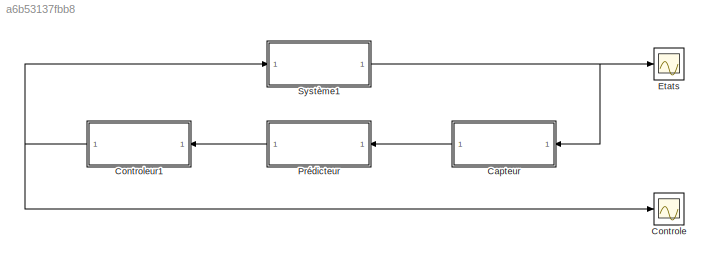
MODEL slx_a6b53137fbb8
KIND model
CONFIG AbsTol = auto
CONFIG EnableMultiTasking = off
CONFIG FixedStep = 5
CONFIG MaxStep = auto
CONFIG MinStep = auto
CONFIG RelTol = 1e-3
CONFIG SampleTimeConstraint = Unconstrained
CONFIG SolverName = ode1
CONFIG StartTime = 0.0
CONFIG StopTime = 100
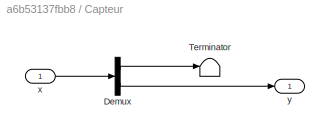
BLOCK [SubSystem] Capteur
BLOCK [Demux] Capteur/Demux
  Outputs = 2
BLOCK [Terminator] Capteur/Terminator
BLOCK [Inport] Capteur/x
BLOCK [Outport] Capteur/y
BLOCK [Scope] Controle
  Floating = off
  NumInputPorts = 1
  ScopeSpecificationString = Simulink.scopes.TimeScopeBlockCfg('CurrentConfiguration', extmgr.ConfigurationSet(extmgr.Configuration('Core','General UI',true),extmgr.Configuration('Core','Source UI',true),extmgr.Configuration('Sources','WiredSimulink',true),extmgr.Configuration('Visuals','Time Domain',true,'SerializedDisplays',{struct('MinYLimReal','-1.33998','MaxYLimReal','1.89422','YLabelReal','','MinYLimMag','0.00000','MaxY...<+1394ch>
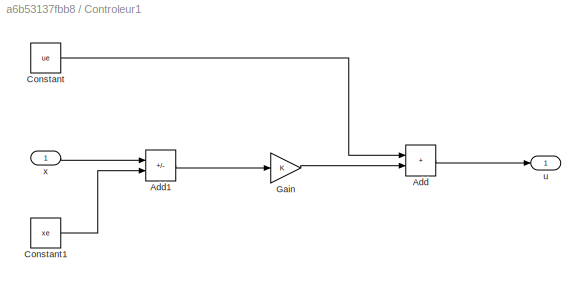
BLOCK [SubSystem] Controleur1
BLOCK [Sum] Controleur1/Add
  IconShape = rectangular
BLOCK [Sum] Controleur1/Add1
  IconShape = rectangular
  Inputs = +-
BLOCK [Constant] Controleur1/Constant
  Value = ue
BLOCK [Constant] Controleur1/Constant1
  Value = xe
BLOCK [Gain] Controleur1/Gain
  Gain = K
  Multiplication = Matrix(K*u)
BLOCK [Outport] Controleur1/u
BLOCK [Inport] Controleur1/x
BLOCK [Scope] Etats
  Floating = off
  NumInputPorts = 1
  ScopeSpecificationString = Simulink.scopes.TimeScopeBlockCfg('CurrentConfiguration', extmgr.ConfigurationSet(extmgr.Configuration('Core','General UI',true),extmgr.Configuration('Core','Source UI',true),extmgr.Configuration('Sources','WiredSimulink',true,'DataLoggingVariableName','ScopeData1'),extmgr.Configuration('Visuals','Time Domain',true,'SerializedDisplays',{struct('MinYLimReal','-0.13455','MaxYLimReal','0.18948','YLab...<+1507ch>
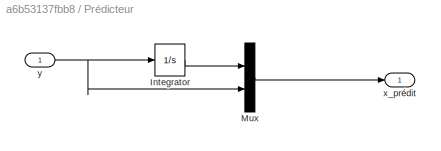
BLOCK [SubSystem] Prédicteur
BLOCK [Integrator] Prédicteur/Integrator
  InitialCondition = x0(1)
BLOCK [Mux] Prédicteur/Mux
  DisplayOption = bar
  Inputs = 2
BLOCK [Outport] Prédicteur/x_prédit
BLOCK [Inport] Prédicteur/y
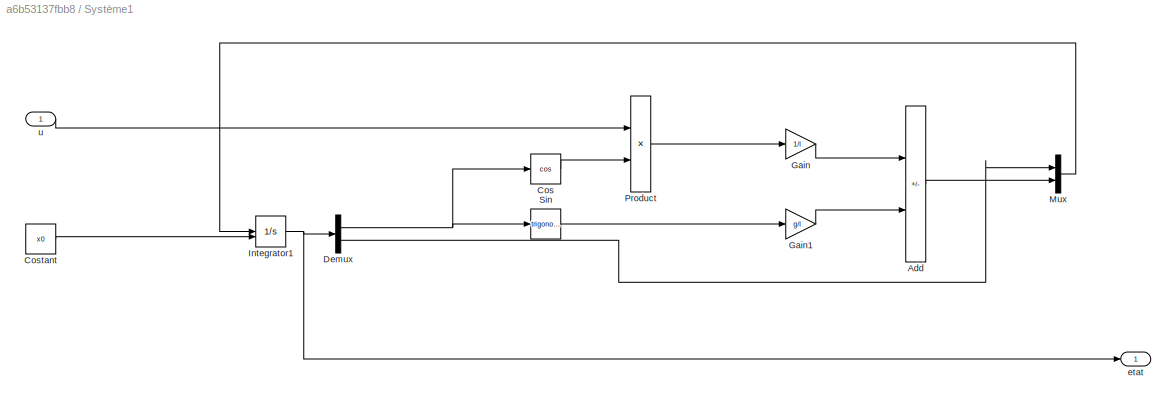
BLOCK [SubSystem] Système1
BLOCK [Sum] Système1/Add
  IconShape = rectangular
  Inputs = -+
BLOCK [Trigonometry] Système1/Cos
  Operator = cos
BLOCK [Constant] Système1/Costant
  Value = x0
BLOCK [Demux] Système1/Demux
  Outputs = 2
BLOCK [Gain] Système1/Gain
  Gain = 1/l
BLOCK [Gain] Système1/Gain1
  Gain = g/l
BLOCK [Integrator] Système1/Integrator1
  InitialConditionSource = external
BLOCK [Mux] Système1/Mux
  DisplayOption = bar
  Inputs = 2
BLOCK [Product] Système1/Product
BLOCK [Trigonometry] Système1/Sin
BLOCK [Outport] Système1/etat
BLOCK [Inport] Système1/u
LINE Capteur/Demux:1 -> Capteur/Terminator:1
LINE Capteur/Demux:2 -> Capteur/y:1
LINE Capteur/x:1 -> Capteur/Demux:1
LINE Capteur:1 -> Prédicteur:1
LINE Controleur1/Add1:1 -> Controleur1/Gain:1
LINE Controleur1/Add:1 -> Controleur1/u:1
LINE Controleur1/Constant1:1 -> Controleur1/Add1:2
LINE Controleur1/Constant:1 -> Controleur1/Add:1
LINE Controleur1/Gain:1 -> Controleur1/Add:2
LINE Controleur1/x:1 -> Controleur1/Add1:1
NET Controleur1:1 -> Controle:1, Système1:1
LINE Prédicteur/Integrator:1 -> Prédicteur/Mux:1
LINE Prédicteur/Mux:1 -> Prédicteur/x_prédit:1
NET Prédicteur/y:1 -> Prédicteur/Integrator:1, Prédicteur/Mux:2
LINE Prédicteur:1 -> Controleur1:1
LINE Système1/Add:1 -> Système1/Mux:2
LINE Système1/Cos:1 -> Système1/Product:2
LINE Système1/Costant:1 -> Système1/Integrator1:2
NET Système1/Demux:1 -> Système1/Cos:1, Système1/Sin:1
LINE Système1/Demux:2 -> Système1/Mux:1
LINE Système1/Gain1:1 -> Système1/Add:2
LINE Système1/Gain:1 -> Système1/Add:1
NET Système1/Integrator1:1 -> Système1/Demux:1, Système1/etat:1
LINE Système1/Mux:1 -> Système1/Integrator1:1
LINE Système1/Product:1 -> Système1/Gain:1
LINE Système1/Sin:1 -> Système1/Gain1:1
LINE Système1/u:1 -> Système1/Product:1
NET Système1:1 -> Capteur:1, Etats:1
note: NET lines group one-source signal fan-out (src -> all destinations, sorted); 1:1 wires keep LINE
